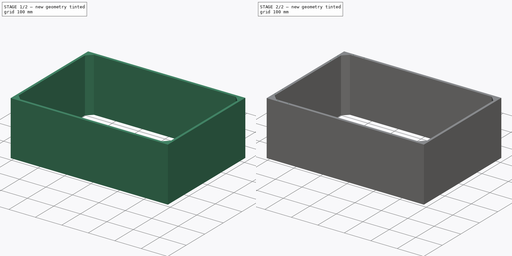
[diagram: build sequence overview — one tinted view per stage of 2, left to right]
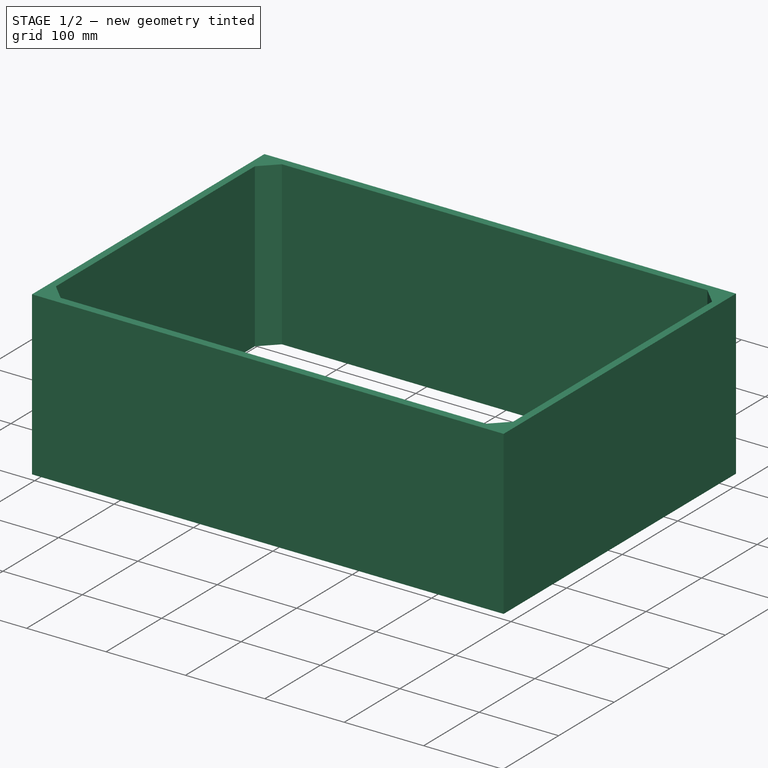
[diagram: stage 1 of 2 — iso view after this stage's code; geometry added in this stage tinted green]
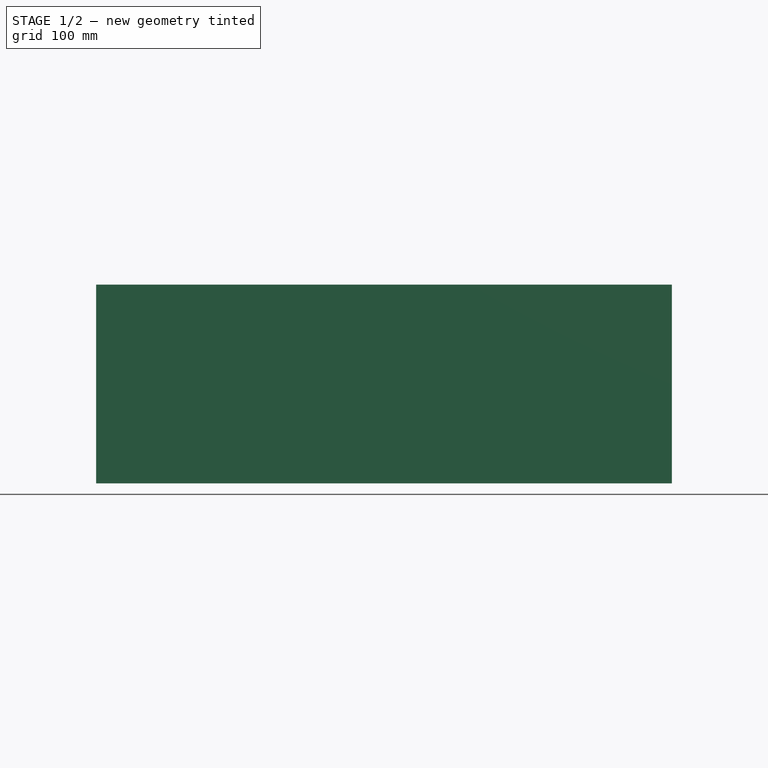
[diagram: stage 1 of 2 — front view after this stage's code; geometry added in this stage tinted green]
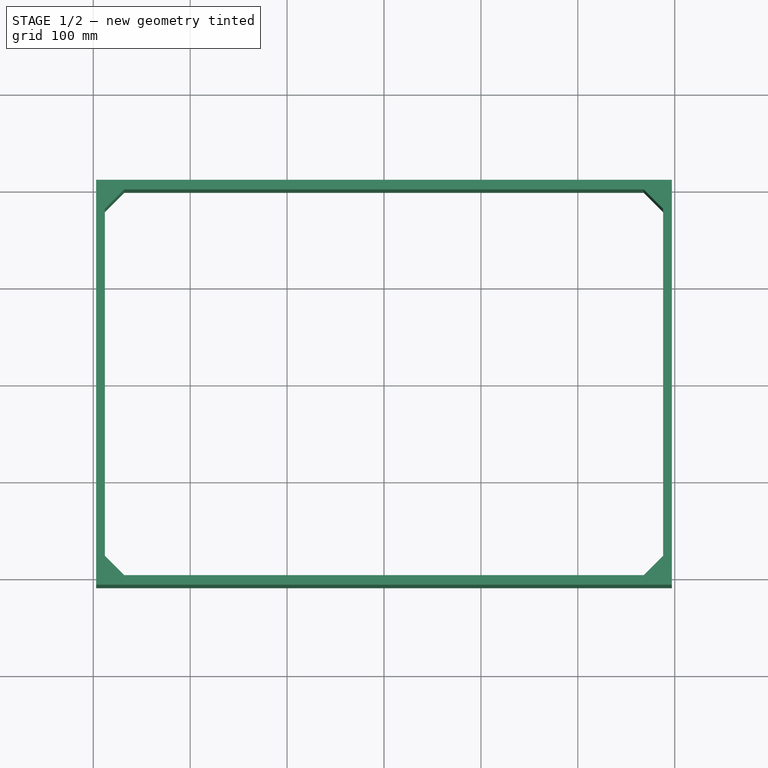
[diagram: stage 1 of 2 — top view after this stage's code; geometry added in this stage tinted green]
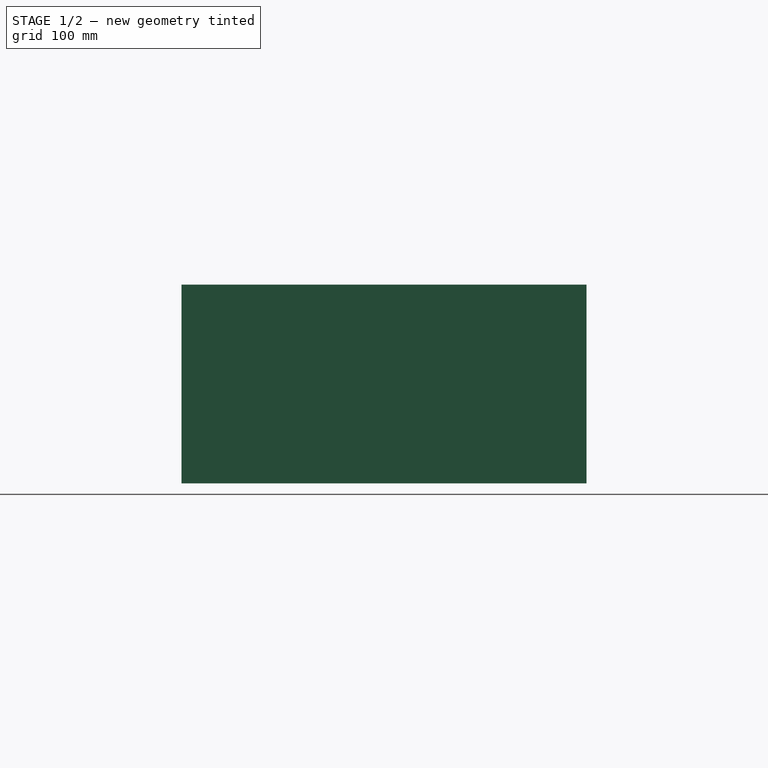
[diagram: stage 1 of 2 — right view after this stage's code; geometry added in this stage tinted green]
FCSTD DOCUMENT  (FreeCAD 0.18R16110 (Git))
Label: Case
License: All rights reserved
LicenseURL: http://en.wikipedia.org/wiki/All_rights_reserved
objects: Sketcher::SketchObject×5, PartDesign::Pad×1, PartDesign::Pocket×1, PartDesign::Hole×1, PartDesign::Body×1
note: 12 computed .brp shape members not serialized (recipe doc carries the construction recipe); baked Part::Feature solids carry a one-line shape summary decoded from their .brp

FEATURE [Sketcher::SketchObject] Sketch
  MapMode = 5
  Support = -> [XY_Plane]
  sketch-geometry (4):
    g0: LineSegment StartX=-297 StartY=-209 StartZ=0 EndX=297 EndY=-209 EndZ=0
    g1: LineSegment StartX=297 StartY=-209 StartZ=0 EndX=297 EndY=209 EndZ=0
    g2: LineSegment StartX=297 StartY=209 StartZ=0 EndX=-297 EndY=209 EndZ=0
    g3: LineSegment StartX=-297 StartY=209 StartZ=0 EndX=-297 EndY=-209 EndZ=0
  constraints (10):
    c: Coincident(g0,g1)
    c: Coincident(g1,g2)
    c: Coincident(g2,g3)
    c: Coincident(g3,g0)
    c: Equal(g0,g2)
    c: Equal(g3,g1)
    c: DistanceX(g0,g0) = 594
    c: DistanceY(g3,g3) = 418
    c: Symmetric(g2,g0,g-1)
    c: Symmetric(g2,g1,g-2)
FEATURE [PartDesign::Pad] Pad
  Length = 205
  Length2 = 100
  Profile = -> Sketch
  Reversed = true
  Type = 0
FEATURE [Sketcher::SketchObject] Sketch001
  ExternalGeometry = -> [Pad]
  MapMode = 5
  Support = -> [Pad]
  sketch-geometry (8):
    g0: LineSegment StartX=-288 StartY=-179 StartZ=0 EndX=-288 EndY=179 EndZ=0
    g1: LineSegment StartX=-288 StartY=179 StartZ=0 EndX=-268 EndY=199 EndZ=0
    g2: LineSegment StartX=-268 StartY=199 StartZ=0 EndX=268 EndY=199 EndZ=0
    g3: LineSegment StartX=268 StartY=199 StartZ=0 EndX=288 EndY=179 EndZ=0
    g4: LineSegment StartX=288 StartY=179 StartZ=0 EndX=288 EndY=-179 EndZ=0
    g5: LineSegment StartX=288 StartY=-179 StartZ=0 EndX=268 EndY=-199 EndZ=0
    g6: LineSegment StartX=268 StartY=-199 StartZ=0 EndX=-268 EndY=-199 EndZ=0
    g7: LineSegment StartX=-268 StartY=-199 StartZ=0 EndX=-288 EndY=-179 EndZ=0
  constraints (20):
    c: Coincident(g0,g1)
    c: Coincident(g1,g2)
    c: Coincident(g2,g3)
    c: Coincident(g3,g4)
    c: Coincident(g4,g5)
    c: Coincident(g5,g6)
    c: Coincident(g6,g7)
    c: Equal(g2,g6)
    c: Equal(g0,g4)
    c: Coincident(g7,g0)
    c: DistanceX(g-2,g0) = -288
    c: DistanceX(g-1,g3) = 288
    c: DistanceY(g-1,g1) = 199
    c: DistanceY(g6,g-1) = 199
    c: Symmetric(g0,g0,g-1)
    c: Symmetric(g3,g4,g-1)
    c: Symmetric(g1,g2,g-2)
    c: Symmetric(g6,g5,g-2)
    c: DistanceY(g4,g3) = 358
    c: DistanceX(g1,g2) = 536
FEATURE [PartDesign::Pocket] Pocket
  BaseFeature = -> Pad
  Length = 10
  Length2 = 100
  Profile = -> Sketch001
  Type = 1
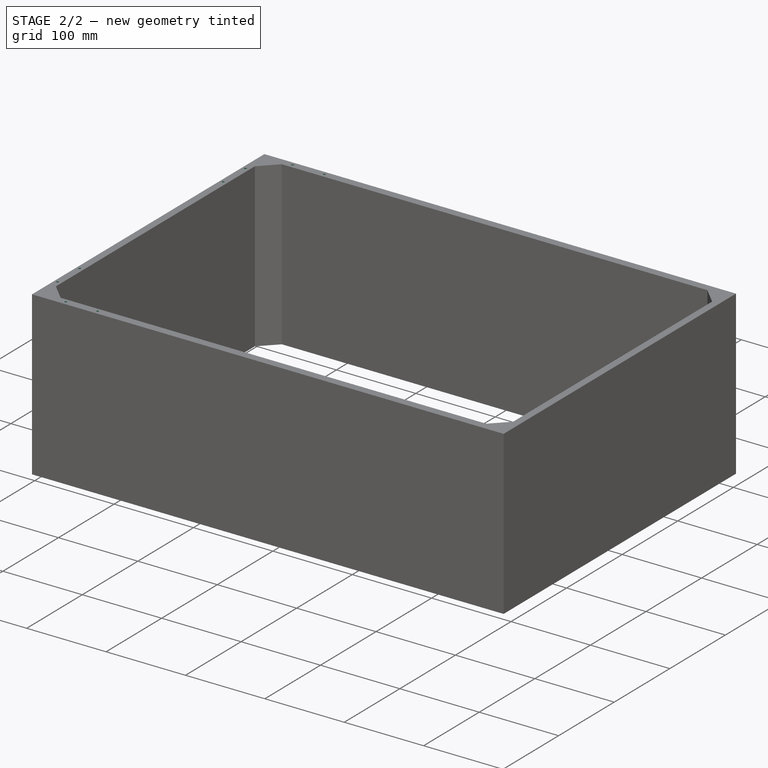
[diagram: stage 2 of 2 — iso view after this stage's code; geometry added in this stage tinted green]
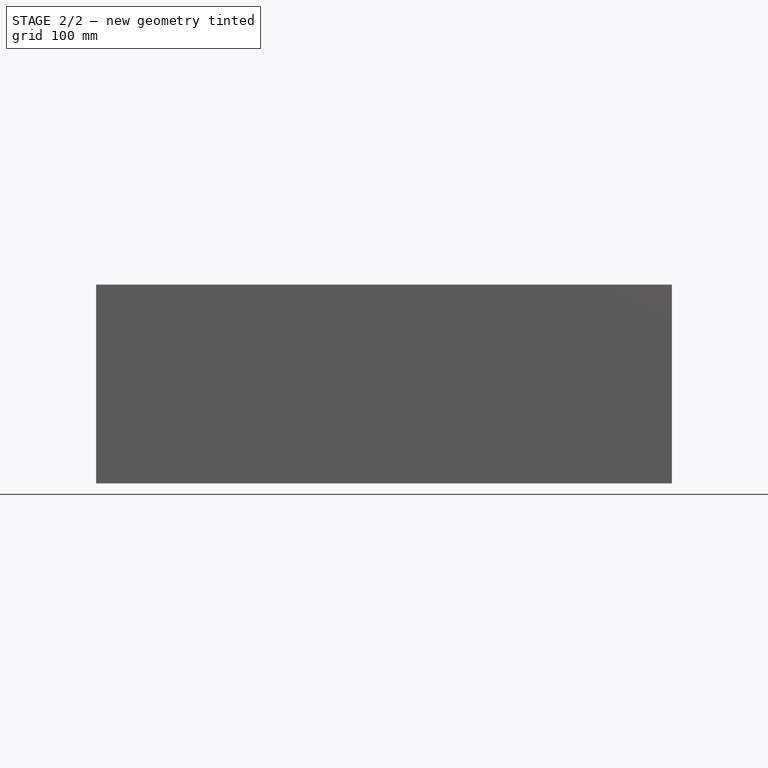
[diagram: stage 2 of 2 — front view after this stage's code; geometry added in this stage tinted green]
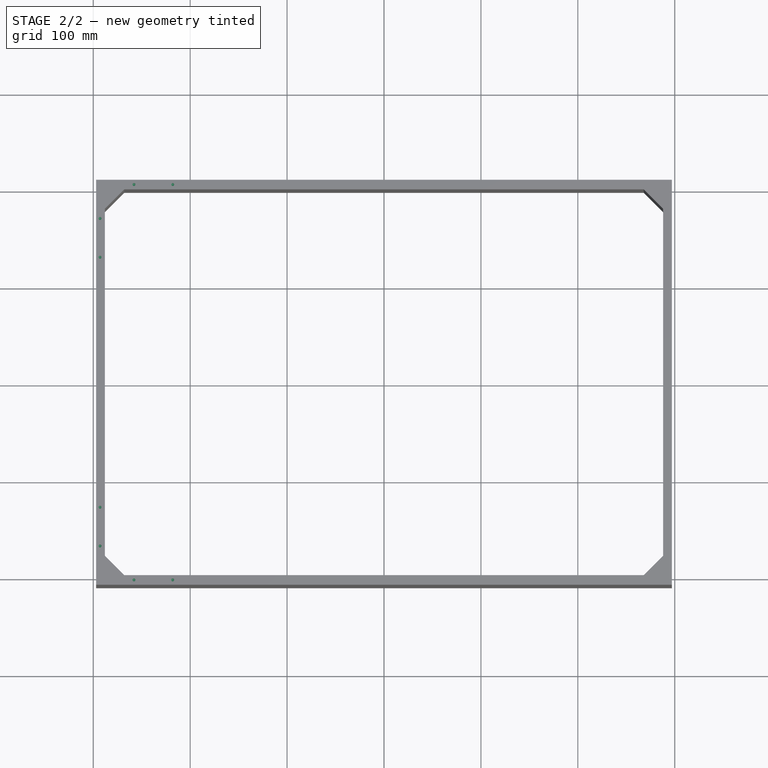
[diagram: stage 2 of 2 — top view after this stage's code; geometry added in this stage tinted green]
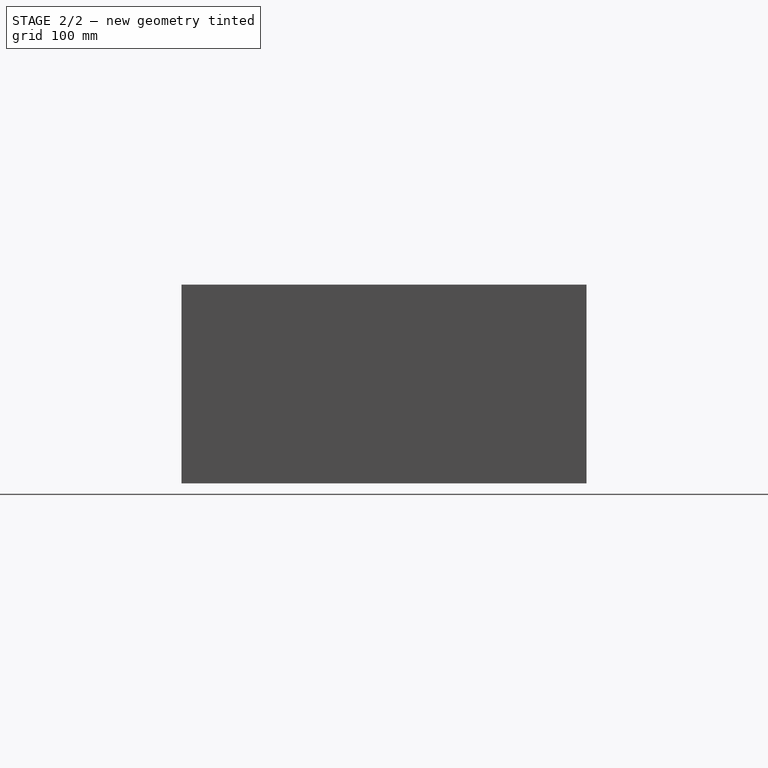
[diagram: stage 2 of 2 — right view after this stage's code; geometry added in this stage tinted green]
FEATURE [Sketcher::SketchObject] Sketch002  label="SketchHelper002"
  MapMode = 5
  Support = -> [XY_Plane]
  sketch-geometry (4):
    g0: LineSegment StartX=-298 StartY=-209 StartZ=0 EndX=298 EndY=-209 EndZ=0
    g1: LineSegment StartX=298 StartY=-209 StartZ=0 EndX=298 EndY=209 EndZ=0
    g2: LineSegment StartX=298 StartY=209 StartZ=0 EndX=-298 EndY=209 EndZ=0
    g3: LineSegment StartX=-298 StartY=209 StartZ=0 EndX=-298 EndY=-209 EndZ=0
  constraints (10):
    c: Coincident(g0,g1)
    c: Coincident(g1,g2)
    c: Coincident(g2,g3)
    c: Coincident(g3,g0)
    c: Equal(g0,g2)
    c: Equal(g3,g1)
    c: DistanceX(g0,g0) = 596
    c: DistanceY(g3,g3) = 418
    c: Symmetric(g2,g0,g-1)
    c: Symmetric(g2,g1,g-2)
FEATURE [Sketcher::SketchObject] CopySketch002
  ExternalGeometry = -> [Sketch002]
  sketch-geometry (8):
    g0: Circle CenterX=-258 CenterY=-204 CenterZ=0 NormalX=0 NormalY=0 NormalZ=1 AngleXU=0 Radius=1.5
    g1: Circle CenterX=-218 CenterY=-204 CenterZ=0 NormalX=0 NormalY=0 NormalZ=1 AngleXU=0 Radius=1.5
    g2: Circle CenterX=-293 CenterY=-169 CenterZ=0 NormalX=0 NormalY=0 NormalZ=1 AngleXU=0 Radius=1.5
    g3: Circle CenterX=-293 CenterY=-129 CenterZ=0 NormalX=0 NormalY=0 NormalZ=1 AngleXU=0 Radius=1.5
    g4: Circle CenterX=-293 CenterY=169 CenterZ=0 NormalX=0 NormalY=0 NormalZ=1 AngleXU=0 Radius=1.5
    g5: Circle CenterX=-293 CenterY=129 CenterZ=0 NormalX=0 NormalY=0 NormalZ=1 AngleXU=0 Radius=1.5
    g6: Circle CenterX=-258 CenterY=204 CenterZ=0 NormalX=0 NormalY=0 NormalZ=1 AngleXU=0 Radius=1.5
    g7: Circle CenterX=-218 CenterY=204 CenterZ=0 NormalX=0 NormalY=0 NormalZ=1 AngleXU=0 Radius=1.5
  constraints (24):
    c: Radius(g7) = 1.5
    c: Radius(g6) = 1.5
    c: Radius(g4) = 1.5
    c: Radius(g5) = 1.5
    c: Radius(g3) = 1.5
    c: Radius(g2) = 1.5
    c: Radius(g0) = 1.5
    c: Radius(g1) = 1.5
    c: Distance(g7,g-4) = 5
    c: Distance(g6,g-4) = 5
    c: Distance(g4,g-3) = 5
    c: Distance(g4,g-4) = 40
    c: Distance(g5,g-4) = 80
    c: Distance(g6,g-3) = 40
    c: Distance(g7,g-3) = 80
    c: Distance(g3,g-3) = 5
    c: Distance(g2,g-3) = 5
    c: Distance(g0,g-5) = 5
    c: Distance(g1,g-5) = 5
    c: Distance(g2,g-5) = 40
    c: Distance(g3,g-5) = 80
    c: Distance(g0,g-3) = 40
    c: Distance(g1,g-3) = 80
    c: Distance(g5,g-3) = 5
FEATURE [PartDesign::Hole] Hole
  BaseFeature = -> Pocket
  Depth = 15
  DepthType = 0
  Diameter = 3
  DrillPoint = 1
  DrillPointAngle = 118
  HoleCutCountersinkAngle = 90
  HoleCutDepth = 0
  HoleCutDiameter = 0
  HoleCutType = 0
  ModelActualThread = false
  Profile = -> CopySketch002
  Tapered = false
  TaperedAngle = 90
  ThreadAngle = 0
  ThreadClass = 0
  ThreadCutOffInner = 0
  ThreadCutOffOuter = 0
  ThreadDirection = 0
  ThreadFit = 0
  ThreadPitch = 0
  ThreadSize = 0
  ThreadType = 0
  Threaded = false
FEATURE [PartDesign::Body] Body
  Group = -> [Sketch,Pad,Sketch001,Pocket,Hole]
  Origin = -> Origin
  Tip = -> Hole
FEATURE [Sketcher::SketchObject] Sketch003  label="SketchHelper003"
  ExternalGeometry = -> [Pad]
  MapMode = 5
  Support = -> [Pad]
  sketch-geometry (8):
    g0: LineSegment StartX=-288 StartY=-179 StartZ=0 EndX=-288 EndY=179 EndZ=0
    g1: LineSegment StartX=-288 StartY=179 StartZ=0 EndX=-268 EndY=199 EndZ=0
    g2: LineSegment StartX=-268 StartY=199 StartZ=0 EndX=268 EndY=199 EndZ=0
    g3: LineSegment StartX=268 StartY=199 StartZ=0 EndX=288 EndY=179 EndZ=0
    g4: LineSegment StartX=288 StartY=179 StartZ=0 EndX=288 EndY=-179 EndZ=0
    g5: LineSegment StartX=288 StartY=-179 StartZ=0 EndX=268 EndY=-199 EndZ=0
    g6: LineSegment StartX=268 StartY=-199 StartZ=0 EndX=-268 EndY=-199 EndZ=0
    g7: LineSegment StartX=-268 StartY=-199 StartZ=0 EndX=-288 EndY=-179 EndZ=0
  constraints (20):
    c: Coincident(g0,g1)
    c: Coincident(g1,g2)
    c: Coincident(g2,g3)
    c: Coincident(g3,g4)
    c: Coincident(g4,g5)
    c: Coincident(g5,g6)
    c: Coincident(g6,g7)
    c: Equal(g2,g6)
    c: Equal(g0,g4)
    c: Coincident(g7,g0)
    c: DistanceX(g-2,g0) = -288
    c: DistanceX(g-1,g3) = 288
    c: DistanceY(g-1,g1) = 199
    c: DistanceY(g6,g-1) = 199
    c: Symmetric(g0,g0,g-1)
    c: Symmetric(g3,g4,g-1)
    c: Symmetric(g1,g2,g-2)
    c: Symmetric(g6,g5,g-2)
    c: DistanceY(g4,g3) = 358
    c: DistanceX(g1,g2) = 536
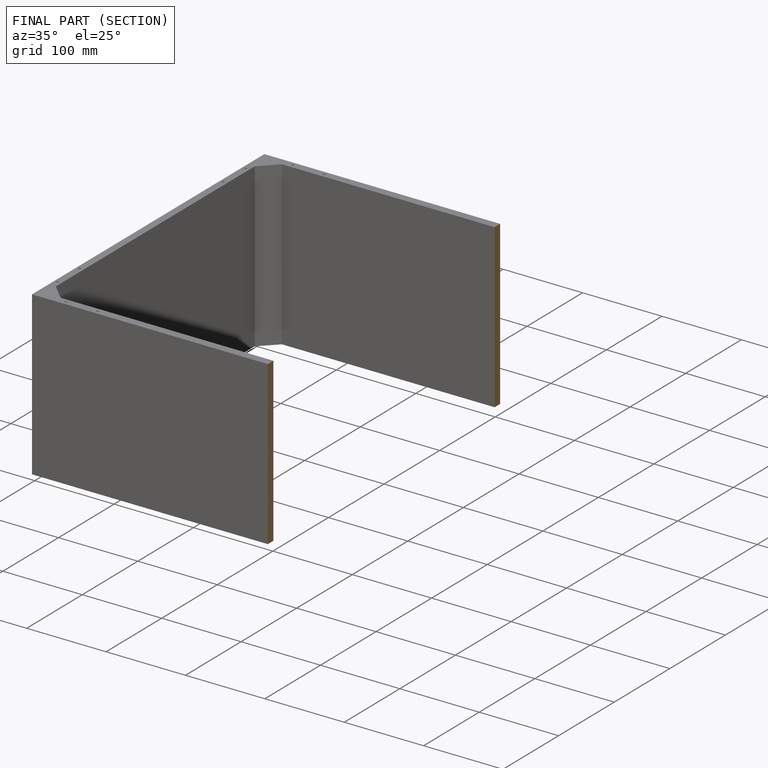
[diagram: finished part — half-section view (interior)]
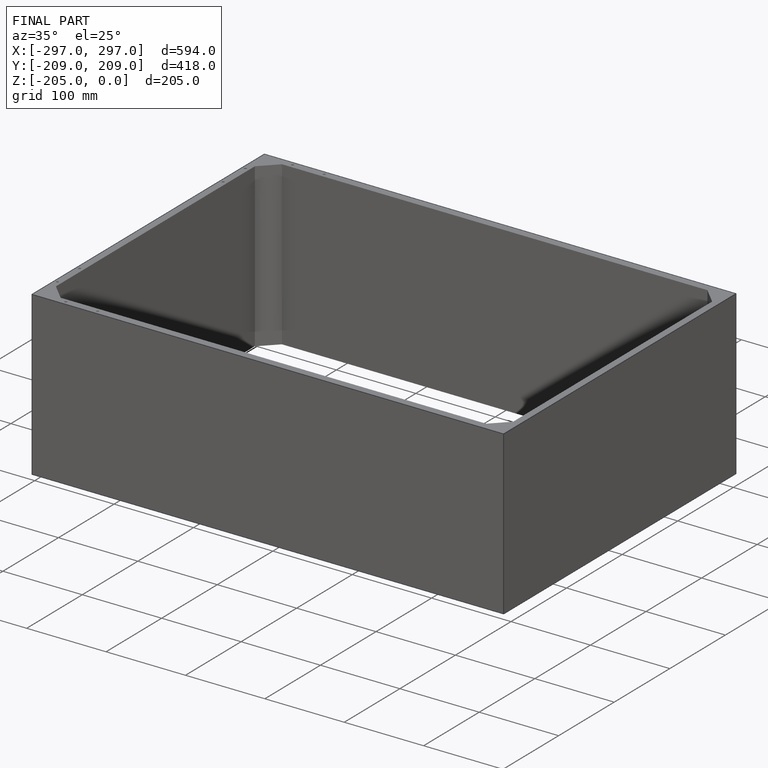
[diagram: finished part — iso view with bounding-box wireframe]
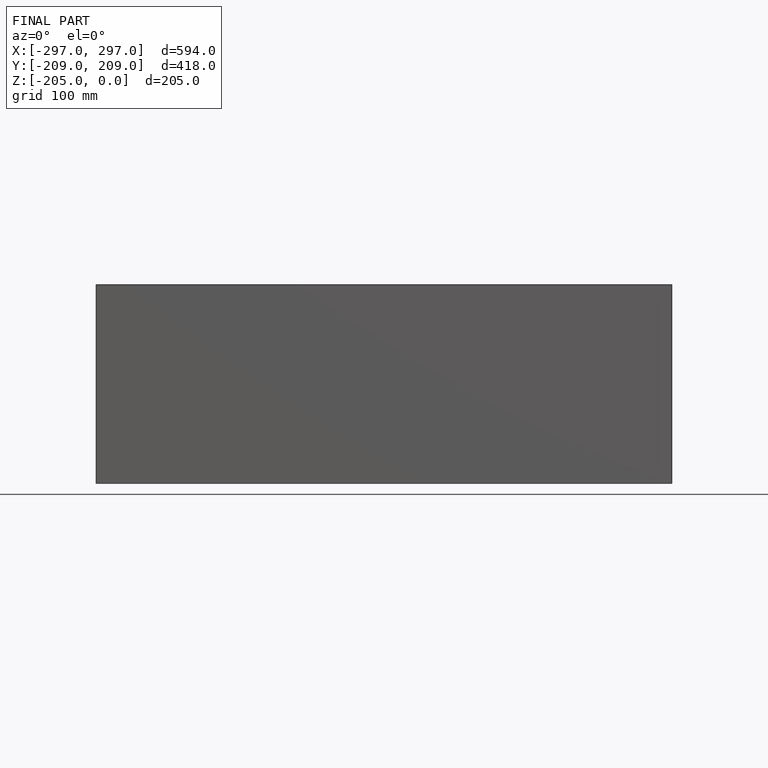
[diagram: finished part — front view with bounding-box wireframe]
